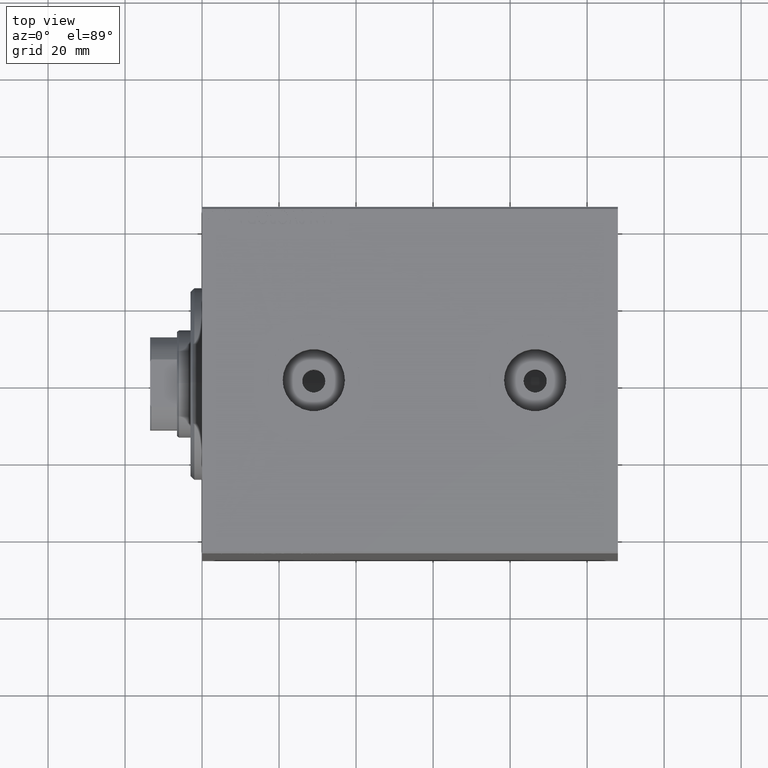
[diagram: clean part render]
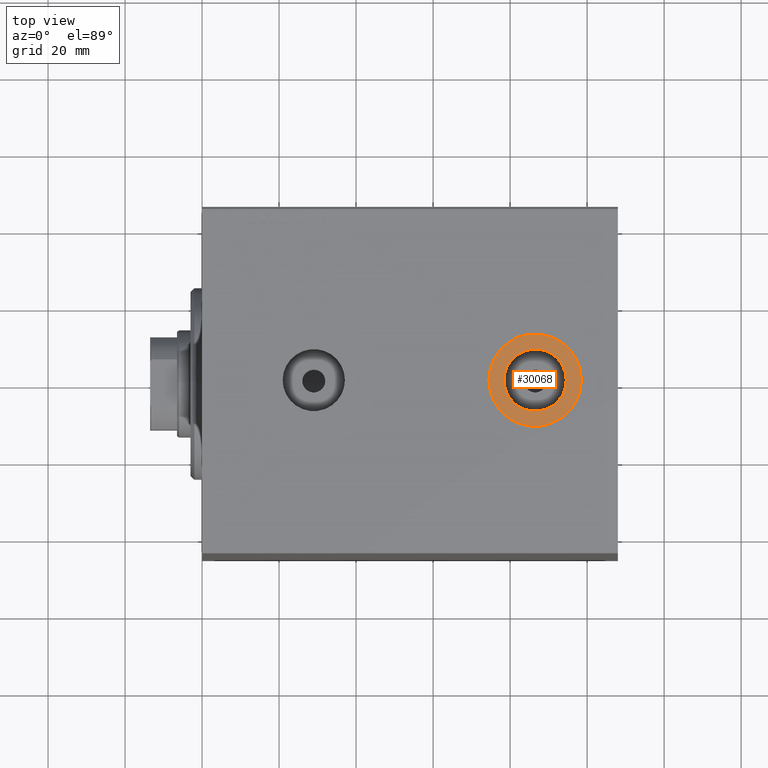
[diagram: same view with one face highlighted and labeled with its STEP entity id]
A machine part, top view. The second image highlights one B-rep face of the part: STEP entity #30068.
In plain terms, the highlighted planar face has unit normal (0, 0, 1).
Its self-contained STEP definition (entity closure, byte-faithful):
#1177 = CARTESIAN_POINT ( 'NONE',  ( 86.50000000000000000, -8.866364432770346144E-15, 57.39999999999999858 ) ) ;
#1368 = DIRECTION ( 'NONE',  ( 0.000000000000000000, 0.000000000000000000, 1.000000000000000000 ) ) ;
#2025 = CARTESIAN_POINT ( 'NONE',  ( 86.50000000000000000, -8.866364432770346144E-15, 57.39999999999999858 ) ) ;
#2673 = VERTEX_POINT ( 'NONE', #29179 ) ;
#3113 = DIRECTION ( 'NONE',  ( 1.000000000000000000, 0.000000000000000000, 0.000000000000000000 ) ) ;
#3155 = AXIS2_PLACEMENT_3D ( 'NONE', #9900, #30559, #26055 ) ;
#4748 = AXIS2_PLACEMENT_3D ( 'NONE', #40111, #16063, #8867 ) ;
#6376 = EDGE_LOOP ( 'NONE', ( #31160, #23299 ) ) ;
#6499 = CIRCLE ( 'NONE', #14409, 8.084999999999995524 ) ;
#8867 = DIRECTION ( 'NONE',  ( 1.000000000000000000, 0.000000000000000000, 0.000000000000000000 ) ) ;
#9678 = ORIENTED_EDGE ( 'NONE', *, *, #28886, .T. ) ;
#9900 = CARTESIAN_POINT ( 'NONE',  ( 86.50000000000000000, -8.866364432770346144E-15, 57.39999999999999858 ) ) ;
#10850 = FACE_BOUND ( 'NONE', #6376, .T. ) ;
#11755 = AXIS2_PLACEMENT_3D ( 'NONE', #40437, #20437, #3113 ) ;
#13318 = VERTEX_POINT ( 'NONE', #17625 ) ;
#14409 = AXIS2_PLACEMENT_3D ( 'NONE', #1177, #17614, #25005 ) ;
#15090 = PLANE ( 'NONE',  #33515 ) ;
#15748 = FACE_OUTER_BOUND ( 'NONE', #35675, .T. ) ;
#16063 = DIRECTION ( 'NONE',  ( 0.000000000000000000, 0.000000000000000000, 1.000000000000000000 ) ) ;
#17614 = DIRECTION ( 'NONE',  ( 0.000000000000000000, 0.000000000000000000, 1.000000000000000000 ) ) ;
#17625 = CARTESIAN_POINT ( 'NONE',  ( 94.58499999999999375, -8.866364432770346144E-15, 57.39999999999999858 ) ) ;
#18393 = CIRCLE ( 'NONE', #4748, 12.00000000000001066 ) ;
#20437 = DIRECTION ( 'NONE',  ( 0.000000000000000000, 0.000000000000000000, 1.000000000000000000 ) ) ;
#21577 = EDGE_CURVE ( 'NONE', #41036, #13318, #36137, .T. ) ;
#22162 = EDGE_CURVE ( 'NONE', #41901, #2673, #28998, .T. ) ;
#23299 = ORIENTED_EDGE ( 'NONE', *, *, #21577, .F. ) ;
#25005 = DIRECTION ( 'NONE',  ( 1.000000000000000000, 0.000000000000000000, 0.000000000000000000 ) ) ;
#26055 = DIRECTION ( 'NONE',  ( 1.000000000000000000, 0.000000000000000000, 0.000000000000000000 ) ) ;
#28666 = ORIENTED_EDGE ( 'NONE', *, *, #22162, .T. ) ;
#28886 = EDGE_CURVE ( 'NONE', #2673, #41901, #18393, .T. ) ;
#28998 = CIRCLE ( 'NONE', #3155, 12.00000000000001066 ) ;
#29179 = CARTESIAN_POINT ( 'NONE',  ( 98.50000000000000000, -8.866364432770346144E-15, 57.39999999999999858 ) ) ;
#30068 = ADVANCED_FACE ( 'NONE', ( #10850, #15748 ), #15090, .T. ) ;
#30559 = DIRECTION ( 'NONE',  ( 0.000000000000000000, 0.000000000000000000, 1.000000000000000000 ) ) ;
#31160 = ORIENTED_EDGE ( 'NONE', *, *, #42995, .F. ) ;
#32377 = DIRECTION ( 'NONE',  ( 1.000000000000000000, 0.000000000000000000, -0.000000000000000000 ) ) ;
#33515 = AXIS2_PLACEMENT_3D ( 'NONE', #2025, #1368, #32377 ) ;
#35675 = EDGE_LOOP ( 'NONE', ( #9678, #28666 ) ) ;
#36137 = CIRCLE ( 'NONE', #11755, 8.084999999999995524 ) ;
#40111 = CARTESIAN_POINT ( 'NONE',  ( 86.50000000000000000, -8.866364432770346144E-15, 57.39999999999999858 ) ) ;
#40437 = CARTESIAN_POINT ( 'NONE',  ( 86.50000000000000000, -8.866364432770346144E-15, 57.39999999999999858 ) ) ;
#40475 = CARTESIAN_POINT ( 'NONE',  ( 74.49999999999998579, -7.396788273793522789E-15, 57.39999999999999858 ) ) ;
#41036 = VERTEX_POINT ( 'NONE', #42962 ) ;
#41901 = VERTEX_POINT ( 'NONE', #40475 ) ;
#42962 = CARTESIAN_POINT ( 'NONE',  ( 78.41499999999999204, -7.876237495659713355E-15, 57.39999999999999858 ) ) ;
#42995 = EDGE_CURVE ( 'NONE', #13318, #41036, #6499, .T. ) ;